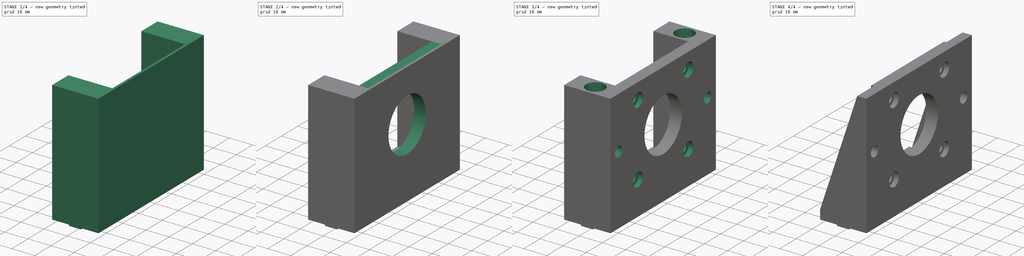
[diagram: build sequence overview — one tinted view per stage of 4, left to right]
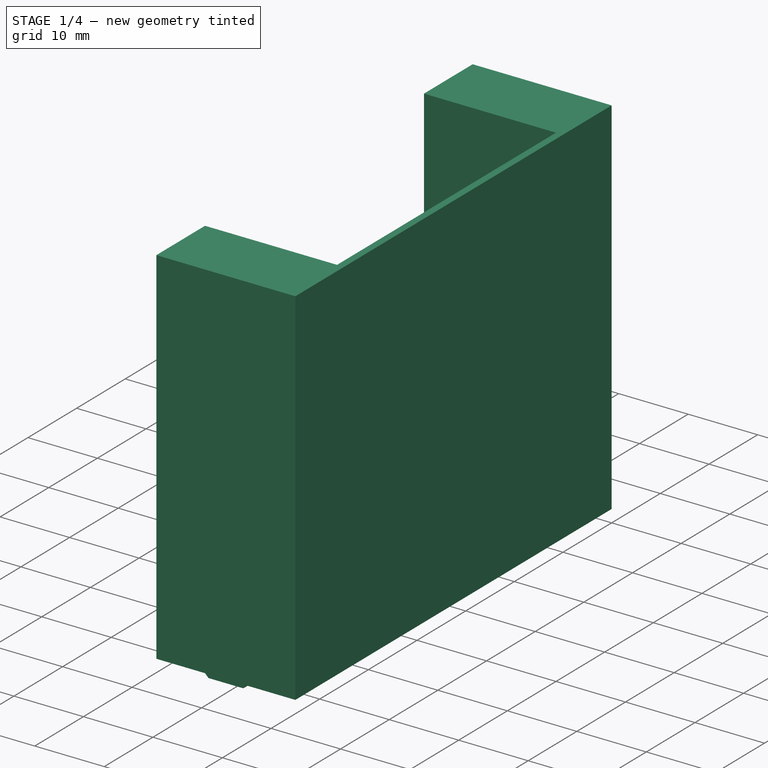
[diagram: stage 1 of 4 — iso view after this stage's code; geometry added in this stage tinted green]
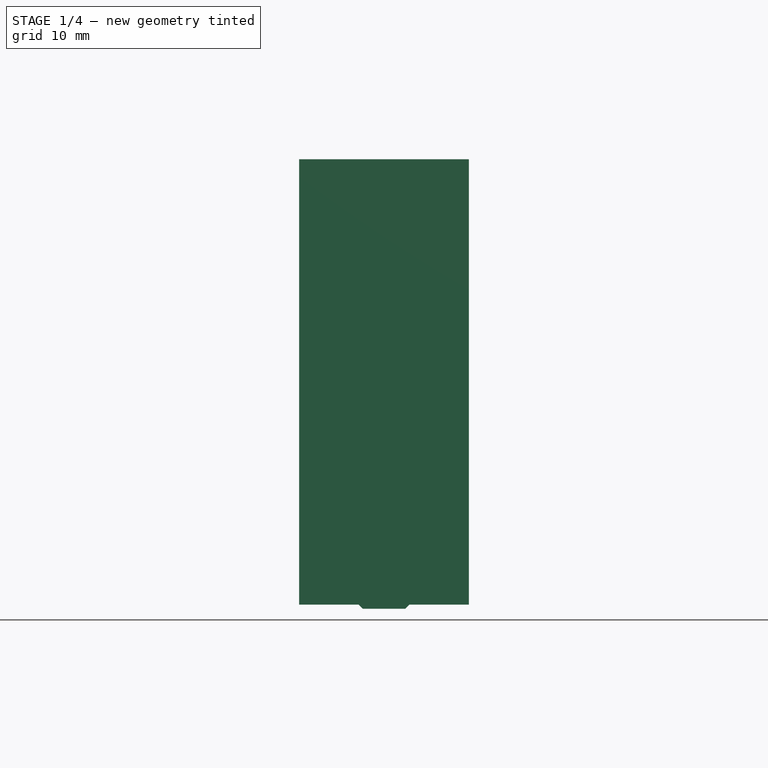
[diagram: stage 1 of 4 — front view after this stage's code; geometry added in this stage tinted green]
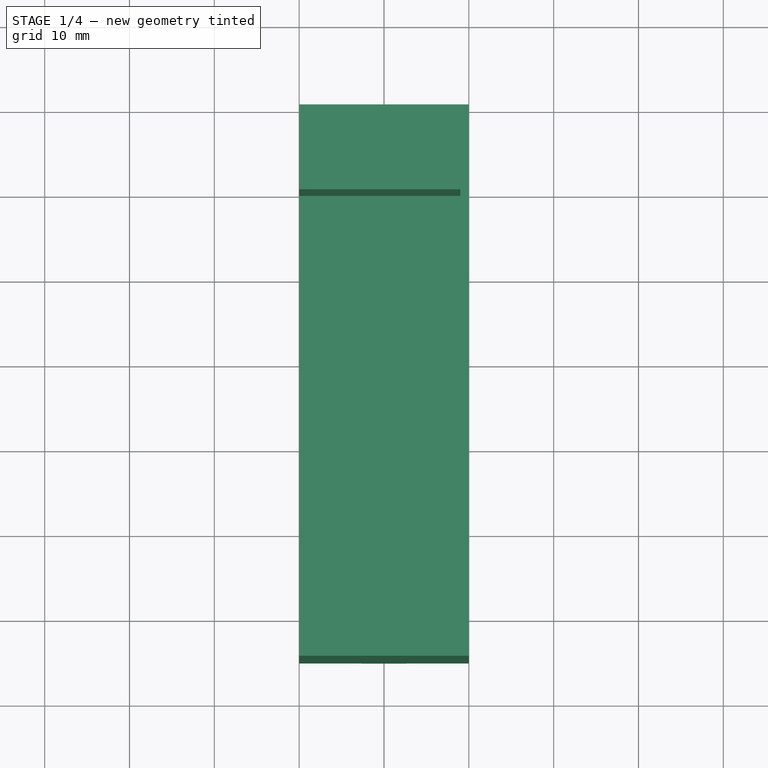
[diagram: stage 1 of 4 — top view after this stage's code; geometry added in this stage tinted green]
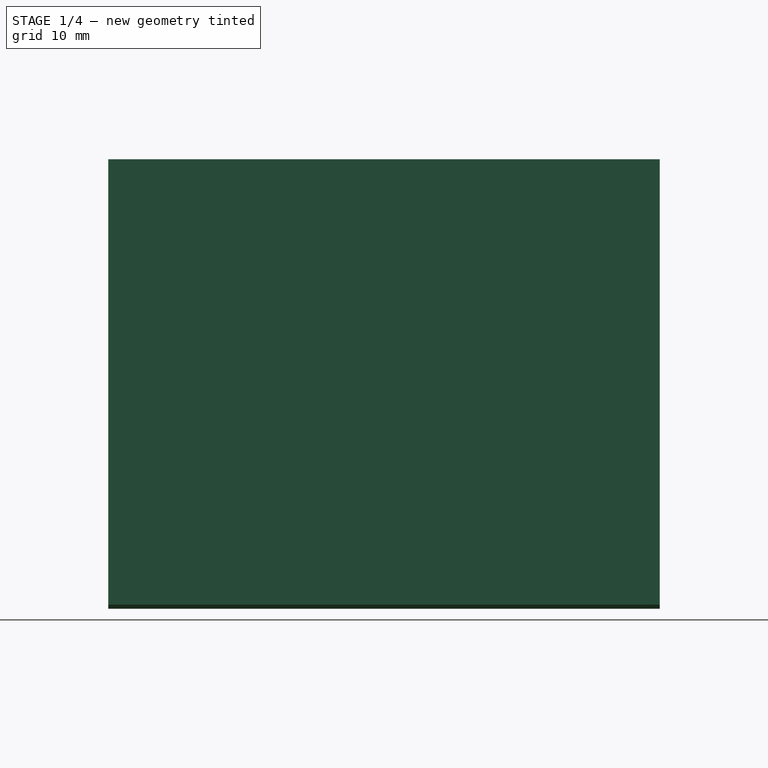
[diagram: stage 1 of 4 — right view after this stage's code; geometry added in this stage tinted green]
FCSTD DOCUMENT  (FreeCAD 0.21R33694 (Git))
Label: 2020_NEMA_motor_mount
License: All rights reserved
LicenseURL: https://en.wikipedia.org/wiki/All_rights_reserved
objects: Sketcher::SketchObject×9, PartDesign::Plane×6, PartDesign::Pocket×4, PartDesign::Hole×3, Spreadsheet::Sheet×2, PartDesign::Pad×2, PartDesign::Body×1
note: 34 computed .brp shape members not serialized (recipe doc carries the construction recipe); baked Part::Feature solids carry a one-line shape summary decoded from their .brp

FEATURE [Spreadsheet::Sheet] Spreadsheet  label="settings"
  cells = A1='Motor settings; B1='mm; C1='Mounting settings; D1='mm; E1='Flange settings; A2='Motor height position; B2(motor_pos_h)=30; C2='mounting hole diameter; D2(mount_hole_dia)=4.5; E2='Flange width; F2(flange_w)=10; A3='Motor depth position; B3(motor_pos_d)=4; C3='mounting hole depth; D3(mount_hole_depth)=4; E3='Flange hole height position; F3(flange_hole_posH)=30; C4='mounting hole counterbore diameter; D4(mount_hole_counterbore_dia)=8; E4='flange hole diameter; F4(flange_hole_dia)=4.5; E5='Flange hole depth; F5(flange_hole_D)=4; E6='Flange hole counterbore diameter; F6(flange_hole_counterbore_dia)=8; A11='NEMA motor settings; C11='Extrusion settings; A12='Outer diameter; B12(NEMA_outer_dia)=45; C12='Size; D12(extrusion_size)=20; A13='Circle diameter; B13(NEMA_circle_dia)=23; C13='slot width; D13(extrusion_slot_w)=6; A14='Mounting hole pitch; B14(NEMA_mount_hole_pitch)=31; C14='slot depth; D14(extrusion_slot_d)=0.5; A15='Mounting hole diameter; B15(NEMA_mount_hole_dia)=3.5; A16='mounting hole depth; B16(NEMA_mount_hole_depth)=3; A17='mounting hole counterbore diameter; B17(NEMA_mount_hole_counterbore_dia)=6
FEATURE [Spreadsheet::Sheet] Spreadsheet001  label="calculations"
  cells = A1='Mount sizings; C1='Motor calculations; E1='Flange sizings; A2='Total mount height; B2(total_mount_H)==<<settings>>.motor_pos_h + <<settings>>.NEMA_outer_dia / 2; C2='Motor center height; D2(motor_center_H)==<<settings>>.motor_pos_h; E2='flange hole left length position; F2(flange_hole_left_pos_L)==<<settings>>.flange_w / 2; A3='Total mount width; B3(total_mount_W)==<<settings>>.flange_w * 2 + <<settings>>.NEMA_outer_dia; C3='Motor center length; D3(motor_center_L)==total_mount_W / 2; E3='flange hole right length position; F3(flange_hole_right_pos_L)==total_mount_W - mount_hole_left_pos_L; A4='Total mount thickness; B4(total_mount_T)==<<settings>>.extrusion_size; C4='Motor pocket depth; D4(motor_pocket_D)==<<settings>>.extrusion_size - motor_minimum_D; E4='flange hole counterbore depth; F4(flange_hole_counterbore_D)==total_mount_T - <<settings>>.mount_hole_depth; A5='Total mount half thickness; B5(total_mount_halfT)==total_mount_T / 2; C5='total motor depth; D5(total_motor_D)==motor_minimum_D + <<settings>>.motor_pos_d; E5='flange hole pitch; F5==flange_hole_right_pos_L - flange_hole_left_pos_L; A6='mount hole left length position; B6(mount_hole_left_pos_L)==<<settings>>.flange_w / 2; C6='motor mounting hole counterbore depth; D6(motor_mount_hole_counterbore_depth)==total_motor_D - <<settings>>.NEMA_mount_hole_depth; A7='mount hole right length position; B7(mount_hole_right_pos_L)==total_mount_W - mount_hole_left_pos_L; A8='mount hole counterbore depth; B8(mount_hole_counterbore_D)==total_mount_H - <<settings>>.mount_hole_depth; A18='Advanced settings; C18='Note; A19='Motor mount minimum depth; B19(motor_minimum_D)=1; C19='preventing a too thin motor wall; A20='generic hole diameter; B20(general_hole_size)=1; C20='the hole bench will properly size this
FEATURE [PartDesign::Plane] DatumPlane  label="plane_right"
  Length = 62.4499
  MapMode = 5
  Placement = pos=(0,0,0) rot=(1,0,0;1.5708rad)
  ResizeMode = 0
  Support = -> [XZ_Plane]
  Width = 89.9499
FEATURE [Sketcher::SketchObject] Sketch
  FullyConstrained = true
  MapMode = 5
  Placement = pos=(0,0,0) rot=(1,0,0;1.5708rad)
  Support = -> [DatumPlane]
  expr: Constraints[18] = <<settings>>.extrusion_slot_d
  expr: Constraints[19] = <<settings>>.extrusion_slot_w
  expr: Constraints[6] = Spreadsheet001.total_mount_H
  expr: Constraints[7] = Spreadsheet001.total_mount_T
  sketch-geometry (9):
    g0: LineSegment StartX=0 StartY=0 StartZ=0 EndX=0 EndY=52.5 EndZ=0
    g1: LineSegment StartX=0 StartY=52.5 StartZ=0 EndX=20 EndY=52.5 EndZ=0
    g2: LineSegment StartX=20 StartY=52.5 StartZ=0 EndX=20 EndY=0 EndZ=0
    g3: GeomPoint X=10 Y=0 Z=0
    g4: LineSegment StartX=0 StartY=0 StartZ=0 EndX=7 EndY=0 EndZ=0
    g5: LineSegment StartX=7 StartY=0 StartZ=0 EndX=7.5 EndY=-0.5 EndZ=0
    g6: LineSegment StartX=7.5 StartY=-0.5 StartZ=0 EndX=12.5 EndY=-0.5 EndZ=0
    g7: LineSegment StartX=12.5 StartY=-0.5 StartZ=0 EndX=13 EndY=0 EndZ=0
    g8: LineSegment StartX=13 StartY=0 StartZ=0 EndX=20 EndY=0 EndZ=0
  constraints (23):
    c: Coincident(g0,g-1)
    c: PointOnObject(g0,g-2)
    c: Coincident(g1,g0)
    c: Horizontal(g1)
    c: Coincident(g2,g1)
    c: Vertical(g2)
    c: DistanceY(g0,g0) = 52.5
    c: DistanceX(g0,g2) = 20
    c: Symmetric(g0,g2,g3)
    c: Coincident(g0,g4)
    c: PointOnObject(g4,g-1)
    c: Coincident(g4,g5)
    c: Coincident(g5,g6)
    c: Horizontal(g6)
    c: Coincident(g6,g7)
    c: PointOnObject(g7,g-1)
    c: Coincident(g7,g8)
    c: Coincident(g8,g2)
    c: DistanceY(g5,g3) = 0.5
    c: DistanceX(g4,g7) = 6
    c: Symmetric(g4,g7,g3)
    c: Angle(g7,g8) = 2.35619
    c: Angle(g4,g5) = 2.35619
FEATURE [PartDesign::Pad] Pad  label="mount_body"
  Direction = (0,-1,-2e-16)
  Length = 65
  Length2 = 10
  Placement = pos=(0,0,0) rot=(1,0,0;1.5708rad)
  Profile = -> Sketch
  ReferenceAxis = -> Sketch [N_Axis]
  Type = 0
  expr: Length = Spreadsheet001.total_mount_W
FEATURE [PartDesign::Plane] DatumPlane001  label="plane_front"
  AttachmentOffset = pos=(0,0,20) rot=(0,0,1;0rad)
  Length = 106.703
  MapMode = 5
  Placement = pos=(20,-4.4e-15,4.4e-15) rot=(0.57735,0.57735,0.57735;2.0944rad)
  ResizeMode = 0
  Support = -> [YZ_Plane]
  Width = 94.2033
  expr: .AttachmentOffset.Base.z = Spreadsheet001.total_mount_T
FEATURE [PartDesign::Plane] DatumPlane002  label="plane_back"
  Length = 106.703
  MapMode = 5
  Placement = pos=(0,0,0) rot=(0.57735,0.57735,0.57735;2.0944rad)
  ResizeMode = 0
  Support = -> [YZ_Plane]
  Width = 94.2033
FEATURE [Sketcher::SketchObject] Sketch001
  FullyConstrained = true
  MapMode = 5
  Placement = pos=(0,0,0) rot=(0.57735,0.57735,0.57735;2.0944rad)
  Support = -> [DatumPlane002]
  expr: Constraints[0] = Spreadsheet001.motor_center_L
  expr: Constraints[12] = <<settings>>.NEMA_outer_dia
  expr: Constraints[1] = Spreadsheet001.motor_center_H
  sketch-geometry (5):
    g0: GeomPoint X=-32.5 Y=30 Z=0
    g1: LineSegment StartX=-55 StartY=52.5 StartZ=0 EndX=-10 EndY=52.5 EndZ=0
    g2: LineSegment StartX=-10 StartY=52.5 StartZ=0 EndX=-10 EndY=7.5 EndZ=0
    g3: LineSegment StartX=-10 StartY=7.5 StartZ=0 EndX=-55 EndY=7.5 EndZ=0
    g4: LineSegment StartX=-55 StartY=7.5 StartZ=0 EndX=-55 EndY=52.5 EndZ=0
  constraints (13):
    c: DistanceX(g0,g-1) = 32.5
    c: DistanceY(g-1,g0) = 30
    c: Coincident(g1,g2)
    c: Coincident(g2,g3)
    c: Coincident(g3,g4)
    c: Coincident(g4,g1)
    c: Horizontal(g1)
    c: Horizontal(g3)
    c: Vertical(g2)
    c: Vertical(g4)
    c: Symmetric(g1,g3,g0)
    c: Equal(g2,g3)
    c: Distance(g2) = 45
FEATURE [PartDesign::Pocket] Pocket  label="motor_pocket"
  BaseFeature = -> Pad
  Direction = (-1,1e-16,-1e-16)
  Length = 19
  Length2 = 5
  Placement = pos=(0,0,0) rot=(1,0,0;1.5708rad)
  Profile = -> Sketch001
  ReferenceAxis = -> Sketch001 [N_Axis]
  Reversed = true
  Type = 0
  expr: Length = Spreadsheet001.motor_pocket_D
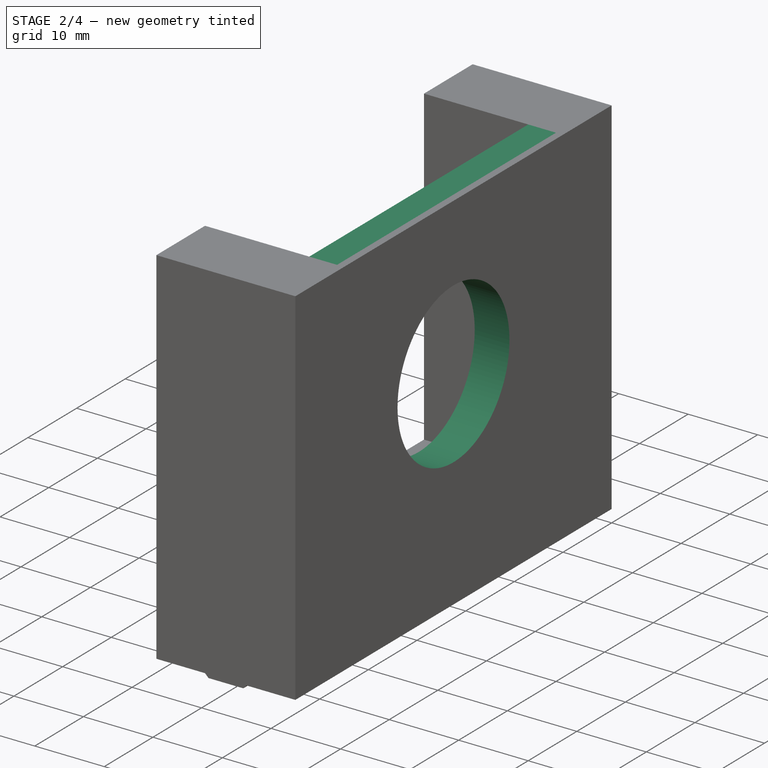
[diagram: stage 2 of 4 — iso view after this stage's code; geometry added in this stage tinted green]
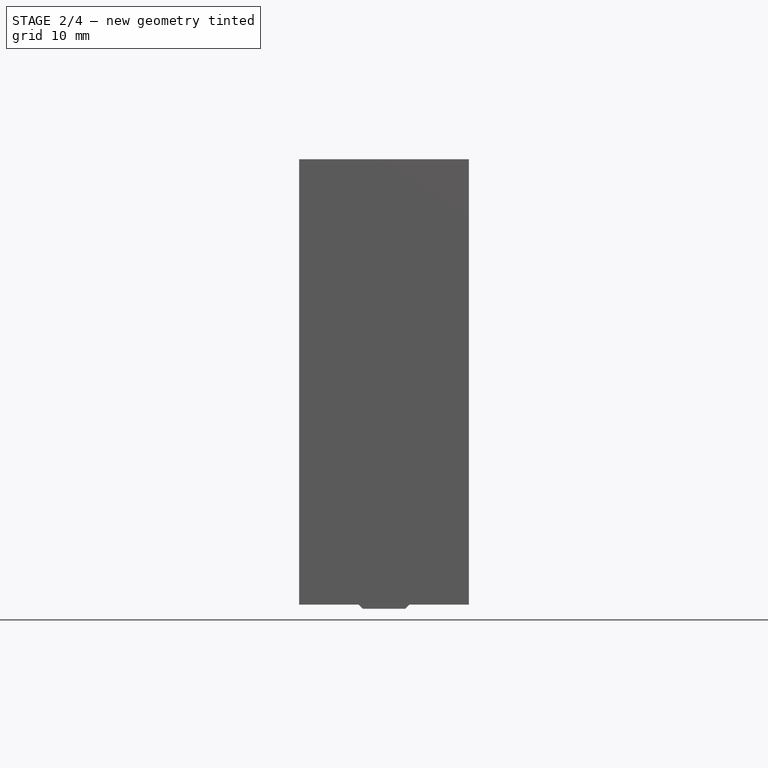
[diagram: stage 2 of 4 — front view after this stage's code; geometry added in this stage tinted green]
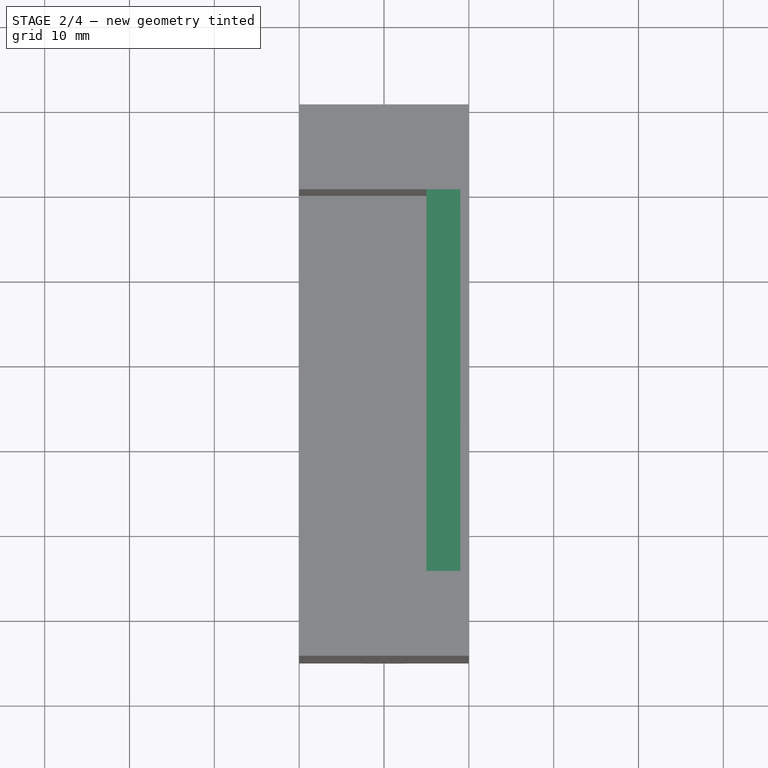
[diagram: stage 2 of 4 — top view after this stage's code; geometry added in this stage tinted green]
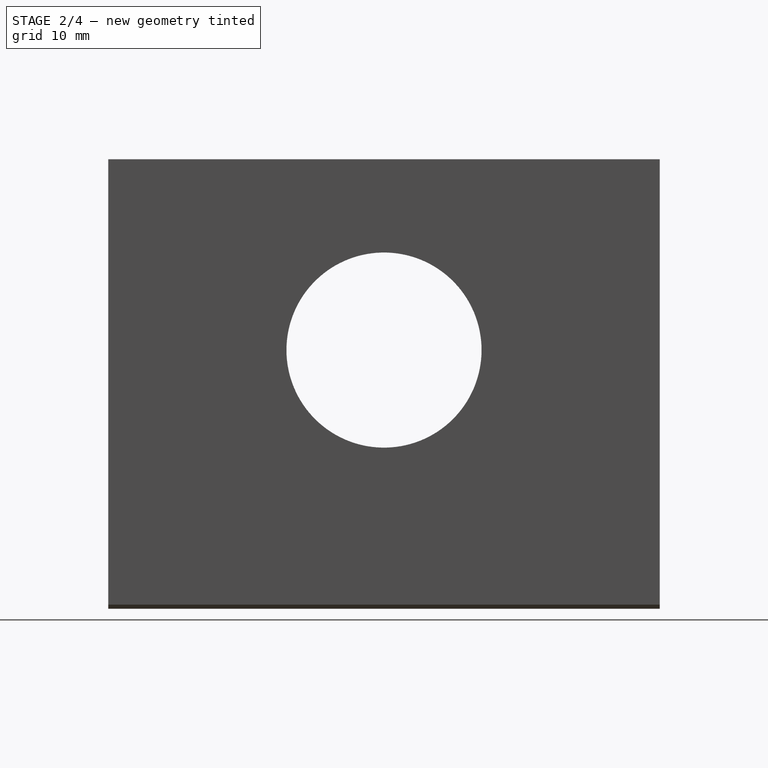
[diagram: stage 2 of 4 — right view after this stage's code; geometry added in this stage tinted green]
FEATURE [PartDesign::Plane] DatumPlane003  label="motor_plane_front"
  AttachmentOffset = pos=(0,0,19) rot=(0,0,1;0rad)
  Length = 106.703
  MapMode = 5
  Placement = pos=(19,-4.2e-15,4.2e-15) rot=(0.57735,0.57735,0.57735;2.0944rad)
  ResizeMode = 0
  Support = -> [YZ_Plane]
  Width = 94.2033
  expr: .AttachmentOffset.Base.z = Spreadsheet001.motor_pocket_D
FEATURE [Sketcher::SketchObject] Sketch002
  FullyConstrained = true
  MapMode = 5
  Placement = pos=(19,-4.2e-15,4.2e-15) rot=(0.57735,0.57735,0.57735;2.0944rad)
  Support = -> [DatumPlane003]
  expr: Constraints[10] = <<settings>>.NEMA_outer_dia
  expr: Constraints[11] = Spreadsheet001.motor_center_H
  expr: Constraints[12] = Spreadsheet001.motor_center_L
  sketch-geometry (5):
    g0: GeomPoint X=-32.5 Y=30 Z=0
    g1: LineSegment StartX=-10 StartY=52.5 StartZ=0 EndX=-55 EndY=52.5 EndZ=0
    g2: LineSegment StartX=-55 StartY=52.5 StartZ=0 EndX=-55 EndY=7.5 EndZ=0
    g3: LineSegment StartX=-55 StartY=7.5 StartZ=0 EndX=-10 EndY=7.5 EndZ=0
    g4: LineSegment StartX=-10 StartY=7.5 StartZ=0 EndX=-10 EndY=52.5 EndZ=0
  constraints (13):
    c: Coincident(g1,g2)
    c: Coincident(g2,g3)
    c: Coincident(g3,g4)
    c: Coincident(g4,g1)
    c: Horizontal(g1)
    c: Horizontal(g3)
    c: Vertical(g2)
    c: Vertical(g4)
    c: Symmetric(g1,g2,g0)
    c: Equal(g4,g3)
    c: Distance(g4) = 45
    c: DistanceY(g-1,g0) = 30
    c: DistanceX(g0,g-1) = 32.5
FEATURE [PartDesign::Pad] Pad001  label="motor_depth_pad"
  BaseFeature = -> Pocket
  Direction = (1,-1e-16,1e-16)
  Length = 4
  Length2 = 10
  Placement = pos=(0,0,0) rot=(1,0,0;1.5708rad)
  Profile = -> Sketch002
  ReferenceAxis = -> Sketch002 [N_Axis]
  Reversed = true
  Type = 0
  expr: Length = <<settings>>.motor_pos_d
FEATURE [Sketcher::SketchObject] Sketch003
  FullyConstrained = true
  MapMode = 5
  Placement = pos=(20,-4.4e-15,4.4e-15) rot=(0.57735,0.57735,0.57735;2.0944rad)
  Support = -> [DatumPlane001]
  expr: Constraints[0] = Spreadsheet001.motor_center_H
  expr: Constraints[1] = Spreadsheet001.motor_center_L
  expr: Constraints[3] = <<settings>>.NEMA_circle_dia
  sketch-geometry (2):
    g0: GeomPoint X=-32.5 Y=30 Z=0
    g1: Circle CenterX=-32.5 CenterY=30 CenterZ=0 NormalX=0 NormalY=0 NormalZ=1 AngleXU=0 Radius=11.5
  constraints (4):
    c: DistanceY(g-1,g0) = 30
    c: DistanceX(g0,g-1) = 32.5
    c: Coincident(g1,g0)
    c: Diameter(g1) = 23
FEATURE [PartDesign::Pocket] Pocket001  label="NEMA_centre_hole"
  BaseFeature = -> Pad001
  Direction = (-1,1e-16,-1e-16)
  Length = 5
  Length2 = 5
  Placement = pos=(0,0,0) rot=(1,0,0;1.5708rad)
  Profile = -> Sketch003
  ReferenceAxis = -> Sketch003 [N_Axis]
  Type = 1
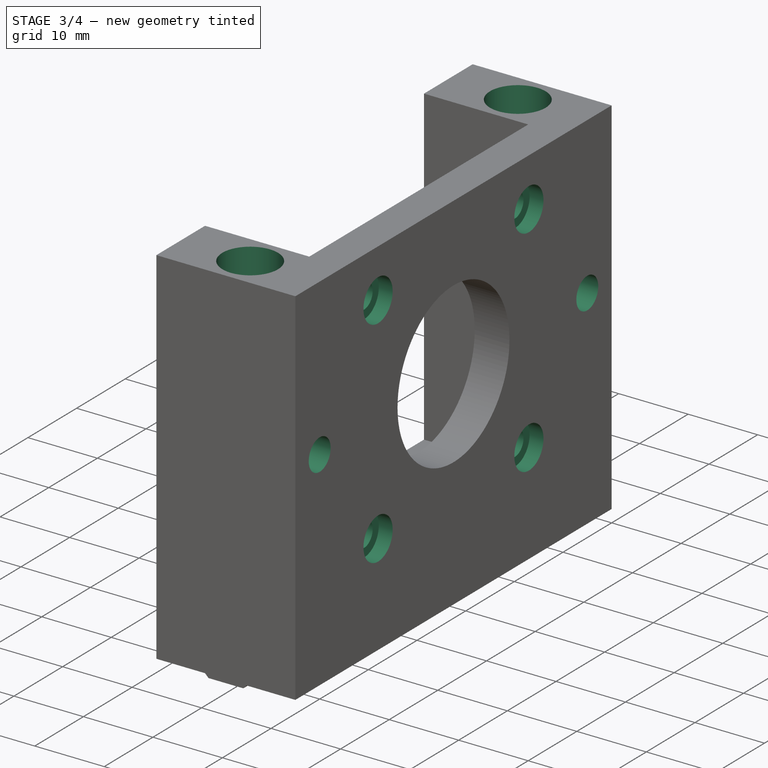
[diagram: stage 3 of 4 — iso view after this stage's code; geometry added in this stage tinted green]
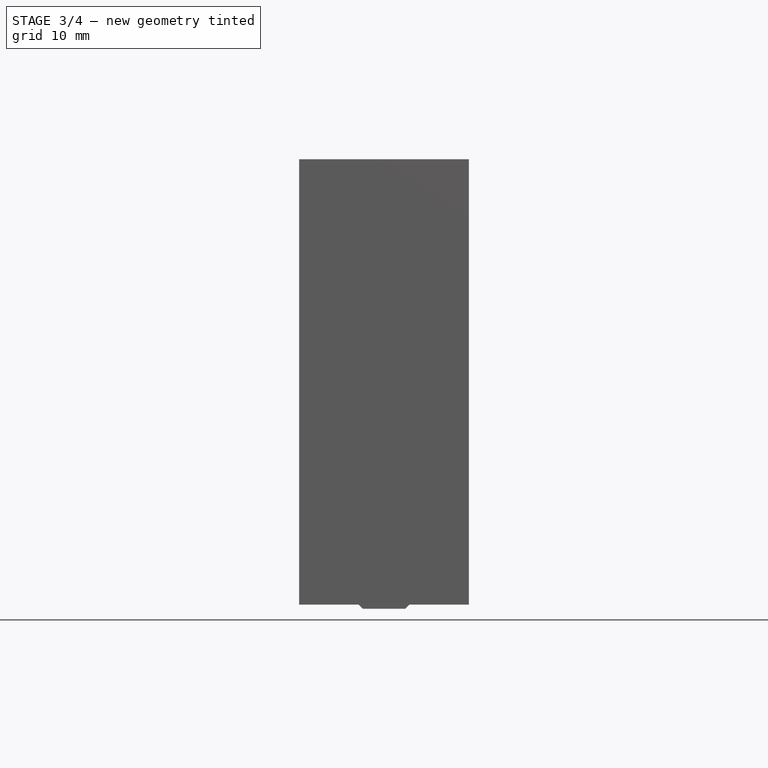
[diagram: stage 3 of 4 — front view after this stage's code; geometry added in this stage tinted green]
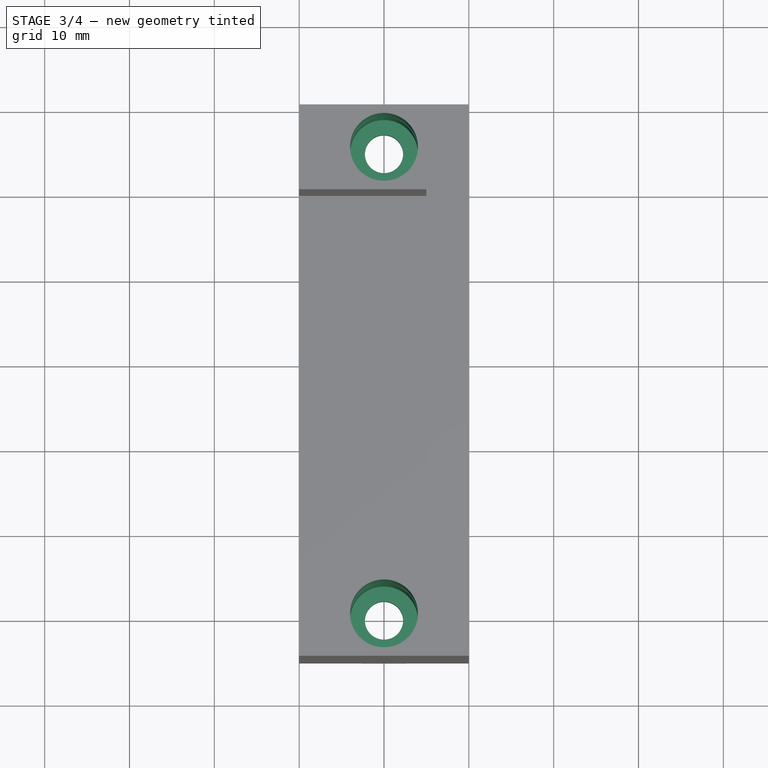
[diagram: stage 3 of 4 — top view after this stage's code; geometry added in this stage tinted green]
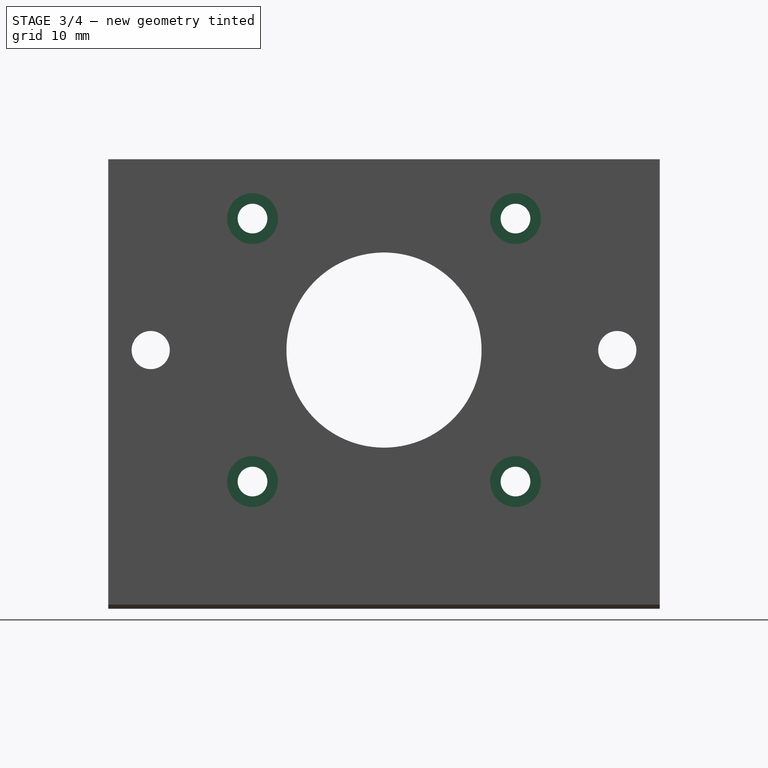
[diagram: stage 3 of 4 — right view after this stage's code; geometry added in this stage tinted green]
FEATURE [Sketcher::SketchObject] Sketch004
  FullyConstrained = true
  MapMode = 5
  Placement = pos=(20,-4.4e-15,4.4e-15) rot=(0.57735,0.57735,0.57735;2.0944rad)
  Support = -> [DatumPlane001]
  expr: Constraints[0] = Spreadsheet001.motor_center_H
  expr: Constraints[12] = Spreadsheet.NEMA_mount_hole_pitch
  expr: Constraints[1] = Spreadsheet001.motor_center_L
  expr: Constraints[20] = <<calculations>>.general_hole_size
  sketch-geometry (9):
    g0: GeomPoint X=-32.5 Y=30 Z=0
    g1: LineSegment StartX=-48 StartY=45.5 StartZ=0 EndX=-17 EndY=45.5 EndZ=0
    g2: LineSegment StartX=-17 StartY=45.5 StartZ=0 EndX=-17 EndY=14.5 EndZ=0
    g3: LineSegment StartX=-17 StartY=14.5 StartZ=0 EndX=-48 EndY=14.5 EndZ=0
    g4: LineSegment StartX=-48 StartY=14.5 StartZ=0 EndX=-48 EndY=45.5 EndZ=0
    g5: Circle CenterX=-48 CenterY=45.5 CenterZ=0 NormalX=0 NormalY=0 NormalZ=1 AngleXU=0 Radius=0.5
    g6: Circle CenterX=-17 CenterY=45.5 CenterZ=0 NormalX=0 NormalY=0 NormalZ=1 AngleXU=0 Radius=0.5
    g7: Circle CenterX=-17 CenterY=14.5 CenterZ=0 NormalX=0 NormalY=0 NormalZ=1 AngleXU=0 Radius=0.5
    g8: Circle CenterX=-48 CenterY=14.5 CenterZ=0 NormalX=0 NormalY=0 NormalZ=1 AngleXU=0 Radius=0.5
  constraints (21):
    c: DistanceY(g-1,g0) = 30
    c: DistanceX(g0,g-1) = 32.5
    c: Coincident(g1,g2)
    c: Coincident(g2,g3)
    c: Coincident(g3,g4)
    c: Coincident(g4,g1)
    c: Horizontal(g1)
    c: Horizontal(g3)
    c: Vertical(g2)
    c: Vertical(g4)
    c: Symmetric(g1,g3,g0)
    c: Equal(g2,g3)
    c: Distance(g2) = 31
    c: Coincident(g5,g1)
    c: Coincident(g6,g1)
    c: Coincident(g7,g2)
    c: Coincident(g8,g3)
    c: Equal(g5,g6)
    c: Equal(g6,g7)
    c: Equal(g7,g8)
    c: Diameter(g5) = 1
FEATURE [PartDesign::Hole] Hole  label="NEMA_mounting_holes"
  BaseFeature = -> Pocket001
  CustomThreadClearance = 0
  Depth = 174.166
  DepthType = 1
  Diameter = 3.5
  DrillForDepth = false
  DrillPoint = 1
  DrillPointAngle = 118
  HoleCutCountersinkAngle = 90
  HoleCutCustomValues = false
  HoleCutDepth = 2
  HoleCutDiameter = 6
  HoleCutType = 1
  ModelThread = false
  Placement = pos=(0,0,0) rot=(1,0,0;1.5708rad)
  Profile = -> Sketch004
  Tapered = false
  TaperedAngle = 90
  ThreadClass = 0
  ThreadDepth = 174.166
  ThreadDepthType = 0
  ThreadDirection = 0
  ThreadFit = 0
  ThreadSize = 0
  ThreadType = 0
  Threaded = false
  UseCustomThreadClearance = false
  expr: Diameter = Spreadsheet.NEMA_mount_hole_dia
  expr: HoleCutDepth = <<calculations>>.motor_mount_hole_counterbore_depth
  expr: HoleCutDiameter = <<settings>>.NEMA_mount_hole_counterbore_dia
FEATURE [PartDesign::Plane] DatumPlane004  label="plane_top"
  AttachmentOffset = pos=(0,0,52.5) rot=(0,0,1;0rad)
  Length = 63.4164
  MapMode = 5
  Placement = pos=(0,0,52.5) rot=(0,0,1;0rad)
  ResizeMode = 0
  Support = -> [XY_Plane]
  Width = 103.416
  expr: .AttachmentOffset.Base.z = Spreadsheet001.total_mount_H
FEATURE [Sketcher::SketchObject] Sketch005
  FullyConstrained = true
  MapMode = 5
  Placement = pos=(0,0,52.5) rot=(0,0,1;0rad)
  Support = -> [DatumPlane004]
  expr: Constraints[1] = Spreadsheet001.total_mount_halfT
  expr: Constraints[2] = Spreadsheet001.mount_hole_left_pos_L
  expr: Constraints[3] = Spreadsheet001.mount_hole_right_pos_L
  expr: Constraints[7] = <<calculations>>.general_hole_size
  sketch-geometry (4):
    g0: GeomPoint X=10 Y=-5 Z=0
    g1: GeomPoint X=10 Y=-60 Z=0
    g2: Circle CenterX=10 CenterY=-5 CenterZ=0 NormalX=0 NormalY=0 NormalZ=1 AngleXU=0 Radius=0.5
    g3: Circle CenterX=10 CenterY=-60 CenterZ=0 NormalX=0 NormalY=0 NormalZ=1 AngleXU=0 Radius=0.5
  constraints (8):
    c: Vertical(g0,g1)
    c: DistanceX(g-1,g0) = 10
    c: DistanceY(g0,g-1) = 5
    c: DistanceY(g1,g-1) = 60
    c: Coincident(g2,g0)
    c: Coincident(g3,g1)
    c: Equal(g3,g2)
    c: Diameter(g2) = 1
FEATURE [PartDesign::Hole] Hole001  label="mounting_holes"
  BaseFeature = -> Hole
  CustomThreadClearance = 0
  Depth = 227.587
  DepthType = 1
  Diameter = 4.5
  DrillForDepth = false
  DrillPoint = 1
  DrillPointAngle = 118
  HoleCutCountersinkAngle = 90
  HoleCutCustomValues = false
  HoleCutDepth = 48.5
  HoleCutDiameter = 8
  HoleCutType = 1
  ModelThread = false
  Placement = pos=(0,0,0) rot=(1,0,0;1.5708rad)
  Profile = -> Sketch005
  Tapered = false
  TaperedAngle = 90
  ThreadClass = 0
  ThreadDepth = 227.587
  ThreadDepthType = 0
  ThreadDirection = 0
  ThreadFit = 0
  ThreadSize = 0
  ThreadType = 0
  Threaded = false
  UseCustomThreadClearance = false
  expr: Diameter = <<settings>>.mount_hole_dia
  expr: HoleCutDepth = <<calculations>>.mount_hole_counterbore_D
  expr: HoleCutDiameter = <<settings>>.mount_hole_counterbore_dia
FEATURE [Sketcher::SketchObject] Sketch006
  FullyConstrained = true
  MapMode = 5
  Placement = pos=(0,0,0) rot=(0.57735,0.57735,0.57735;2.0944rad)
  Support = -> [DatumPlane002]
  expr: Constraints[0] = <<settings>>.flange_hole_posH
  expr: Constraints[2] = <<calculations>>.flange_hole_left_pos_L
  expr: Constraints[3] = <<calculations>>.flange_hole_right_pos_L
  expr: Constraints[7] = <<calculations>>.general_hole_size
  sketch-geometry (4):
    g0: GeomPoint X=-5 Y=30 Z=0
    g1: GeomPoint X=-60 Y=30 Z=0
    g2: Circle CenterX=-5 CenterY=30 CenterZ=0 NormalX=0 NormalY=0 NormalZ=1 AngleXU=0 Radius=0.5
    g3: Circle CenterX=-60 CenterY=30 CenterZ=0 NormalX=0 NormalY=0 NormalZ=1 AngleXU=0 Radius=0.5
  constraints (8):
    c: DistanceY(g-1,g0) = 30
    c: Horizontal(g0,g1)
    c: DistanceX(g0,g-1) = 5
    c: DistanceX(g1,g-1) = 60
    c: Coincident(g2,g0)
    c: Coincident(g3,g1)
    c: Equal(g2,g3)
    c: Diameter(g2) = 1
FEATURE [PartDesign::Hole] Hole002  label="flange_holes"
  BaseFeature = -> Hole001
  CustomThreadClearance = 0
  Depth = 201.982
  DepthType = 1
  Diameter = 4.5
  DrillForDepth = false
  DrillPoint = 1
  DrillPointAngle = 118
  HoleCutCountersinkAngle = 90
  HoleCutCustomValues = false
  HoleCutDepth = 16
  HoleCutDiameter = 8
  HoleCutType = 1
  ModelThread = false
  Placement = pos=(0,0,0) rot=(1,0,0;1.5708rad)
  Profile = -> Sketch006
  Reversed = true
  Tapered = false
  TaperedAngle = 90
  ThreadClass = 0
  ThreadDepth = 201.982
  ThreadDepthType = 0
  ThreadDirection = 0
  ThreadFit = 0
  ThreadSize = 0
  ThreadType = 0
  Threaded = false
  UseCustomThreadClearance = false
  expr: Diameter = <<settings>>.flange_hole_dia
  expr: HoleCutDepth = <<calculations>>.flange_hole_counterbore_D
  expr: HoleCutDiameter = <<settings>>.flange_hole_counterbore_dia
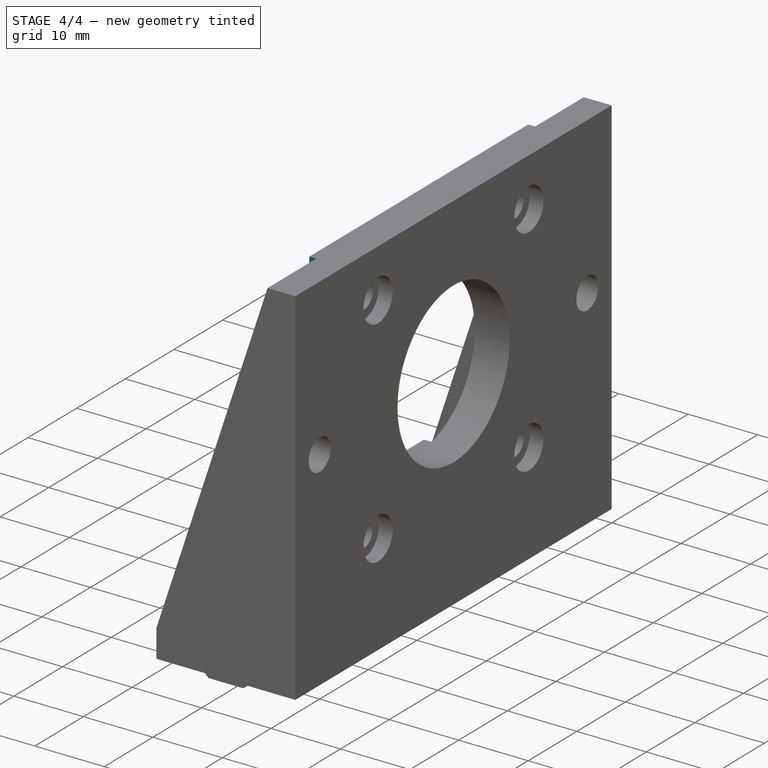
[diagram: stage 4 of 4 — iso view after this stage's code; geometry added in this stage tinted green]
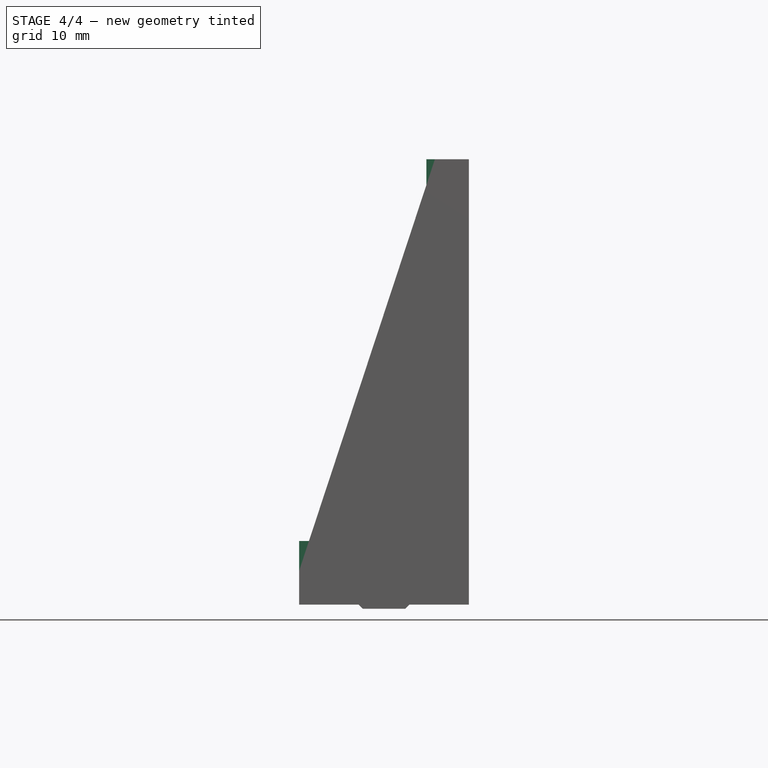
[diagram: stage 4 of 4 — front view after this stage's code; geometry added in this stage tinted green]
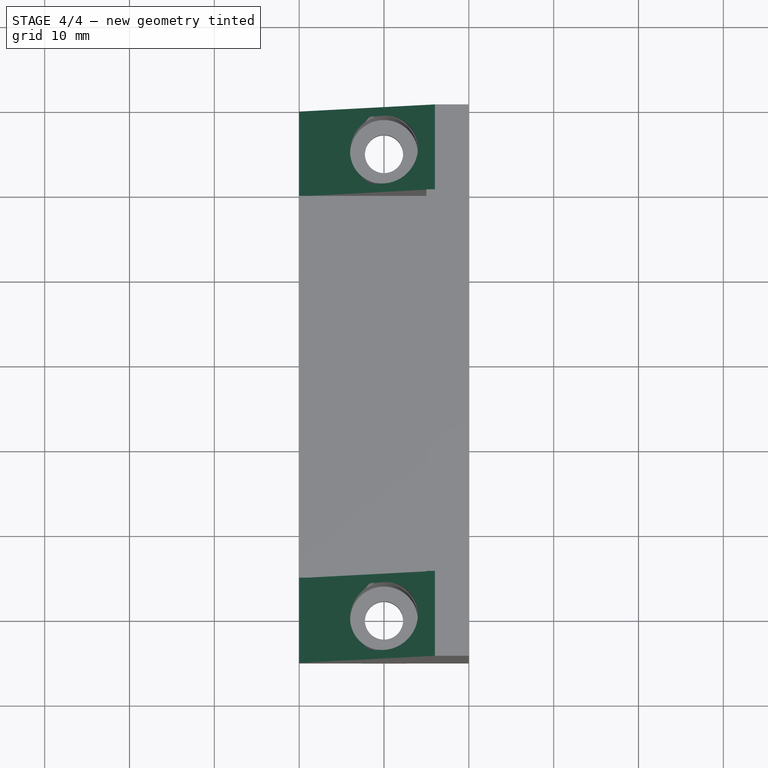
[diagram: stage 4 of 4 — top view after this stage's code; geometry added in this stage tinted green]
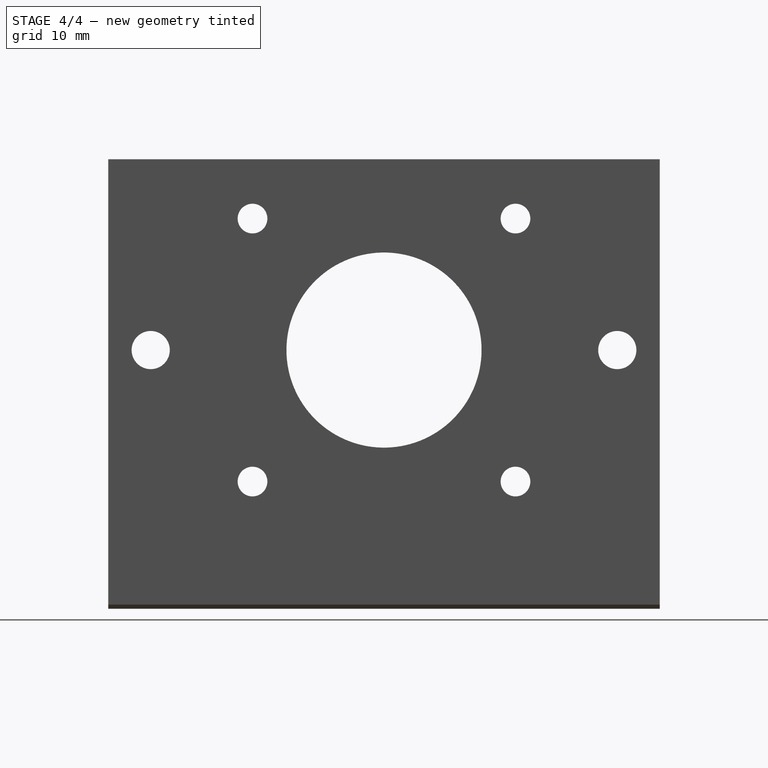
[diagram: stage 4 of 4 — right view after this stage's code; geometry added in this stage tinted green]
FEATURE [Sketcher::SketchObject] Sketch007
  FullyConstrained = true
  MapMode = 5
  Placement = pos=(0,0,0) rot=(1,0,0;1.5708rad)
  Support = -> [DatumPlane]
  expr: Constraints[1] = <<settings>>.mount_hole_depth
  expr: Constraints[3] = <<calculations>>.total_mount_H
  expr: Constraints[8] = <<calculations>>.flange_hole_counterbore_D
  sketch-geometry (4):
    g0: GeomPoint X=0 Y=4 Z=0
    g1: LineSegment StartX=16 StartY=52.5 StartZ=0 EndX=0 EndY=4 EndZ=0
    g2: LineSegment StartX=0 StartY=4 StartZ=0 EndX=0 EndY=52.5 EndZ=0
    g3: LineSegment StartX=0 StartY=52.5 StartZ=0 EndX=16 EndY=52.5 EndZ=0
  constraints (10):
    c: PointOnObject(g0,g-2)
    c: DistanceY(g-1,g0) = 4
    c: PointOnObject(g2,g-2)
    c: DistanceY(g-1,g2) = 52.5
    c: Coincident(g3,g2)
    c: Coincident(g3,g1)
    c: Horizontal(g3)
    c: Coincident(g1,g2)
    c: DistanceX(g3,g3) = 16
    c: Coincident(g1,g0)
FEATURE [PartDesign::Pocket] Pocket002  label="right_flange_taper"
  BaseFeature = -> Hole002
  Direction = (0,1,2e-16)
  Length = 10
  Length2 = 5
  Placement = pos=(0,0,0) rot=(1,0,0;1.5708rad)
  Profile = -> Sketch007
  ReferenceAxis = -> Sketch007 [N_Axis]
  Reversed = true
  Type = 0
  expr: Length = <<settings>>.flange_w
FEATURE [PartDesign::Plane] DatumPlane005  label="plane_left"
  AttachmentOffset = pos=(0,0,65) rot=(0,0,1;0rad)
  Length = 62.4499
  MapMode = 5
  Placement = pos=(0,-65,-1.44e-14) rot=(1,0,0;1.5708rad)
  ResizeMode = 0
  Support = -> [XZ_Plane]
  Width = 89.9499
  expr: .AttachmentOffset.Base.z = <<calculations>>.total_mount_W
FEATURE [Sketcher::SketchObject] Sketch008
  FullyConstrained = true
  MapMode = 5
  Placement = pos=(0,-65,-1.44e-14) rot=(1,0,0;1.5708rad)
  Support = -> [DatumPlane005]
  expr: Constraints[1] = <<settings>>.mount_hole_depth
  expr: Constraints[4] = <<calculations>>.total_mount_H
  expr: Constraints[9] = <<calculations>>.flange_hole_counterbore_D
  sketch-geometry (4):
    g0: GeomPoint X=0 Y=4 Z=0
    g1: LineSegment StartX=0 StartY=4 StartZ=0 EndX=0 EndY=52.5 EndZ=0
    g2: LineSegment StartX=0 StartY=52.5 StartZ=0 EndX=16 EndY=52.5 EndZ=0
    g3: LineSegment StartX=16 StartY=52.5 StartZ=0 EndX=0 EndY=4 EndZ=0
  constraints (10):
    c: PointOnObject(g0,g-2)
    c: DistanceY(g-1,g0) = 4
    c: Coincident(g1,g0)
    c: PointOnObject(g1,g-2)
    c: DistanceY(g-1,g1) = 52.5
    c: Coincident(g2,g1)
    c: Horizontal(g2)
    c: Coincident(g3,g2)
    c: Coincident(g3,g1)
    c: DistanceX(g2,g2) = 16
FEATURE [PartDesign::Pocket] Pocket003  label="left_flange_taper"
  BaseFeature = -> Pocket002
  Direction = (0,1,2e-16)
  Length = 10
  Length2 = 5
  Placement = pos=(0,0,0) rot=(1,0,0;1.5708rad)
  Profile = -> Sketch008
  ReferenceAxis = -> Sketch008 [N_Axis]
  Type = 0
  expr: Length = <<settings>>.flange_w
FEATURE [PartDesign::Body] Body
  Group = -> [DatumPlane,Sketch,Pad,DatumPlane001,DatumPlane002,Sketch001,Pocket,DatumPlane003,Sketch002,Pad001,Sketch003,Pocket001,Sketch004,Hole,DatumPlane004,Sketch005,Hole001,Sketch006,Hole002,Sketch007,Pocket002,DatumPlane005,Sketch008,Pocket003]
  Origin = -> Origin
  Tip = -> Pocket003
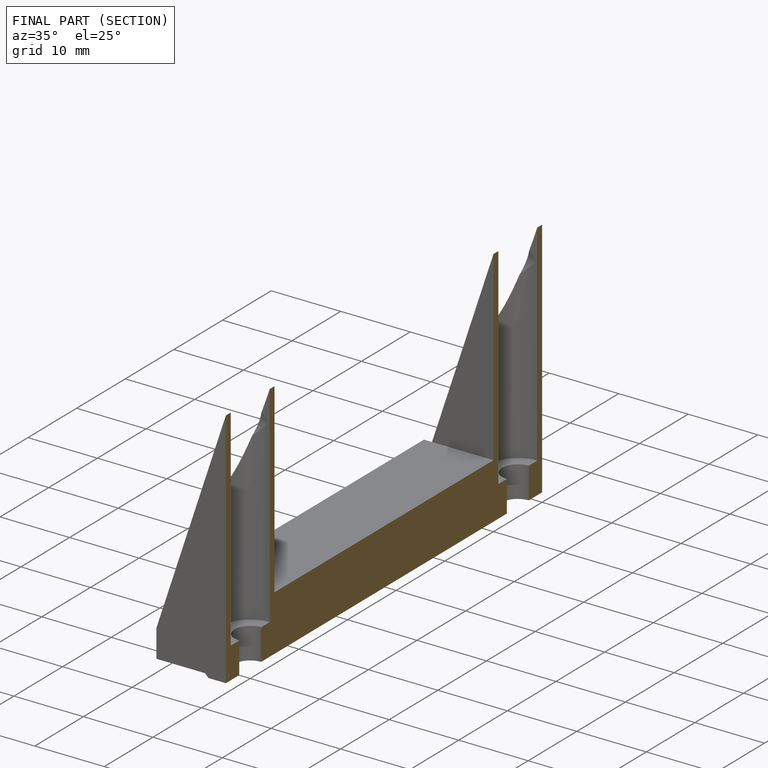
[diagram: finished part — half-section view (interior)]
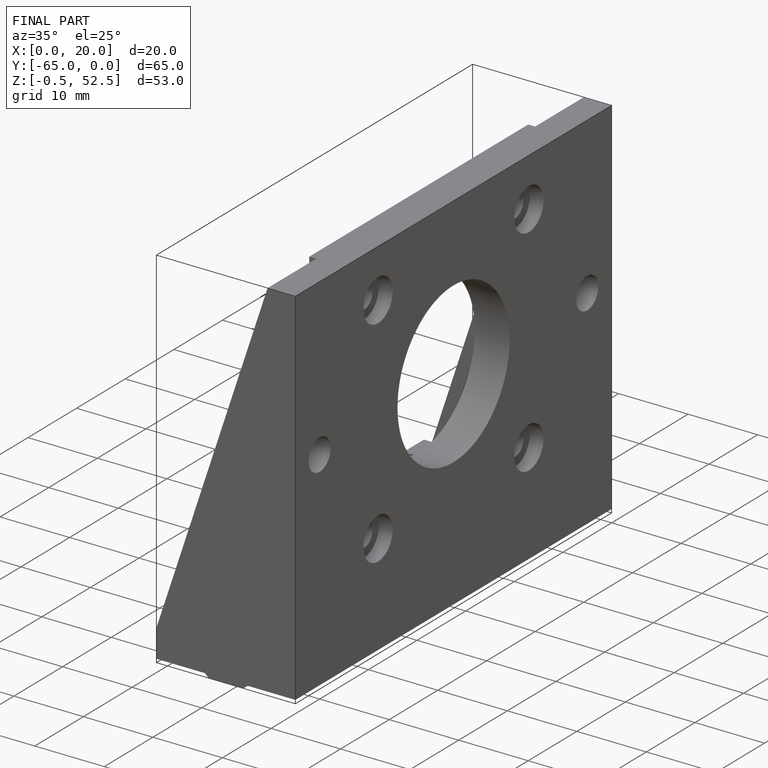
[diagram: finished part — iso view with bounding-box wireframe]
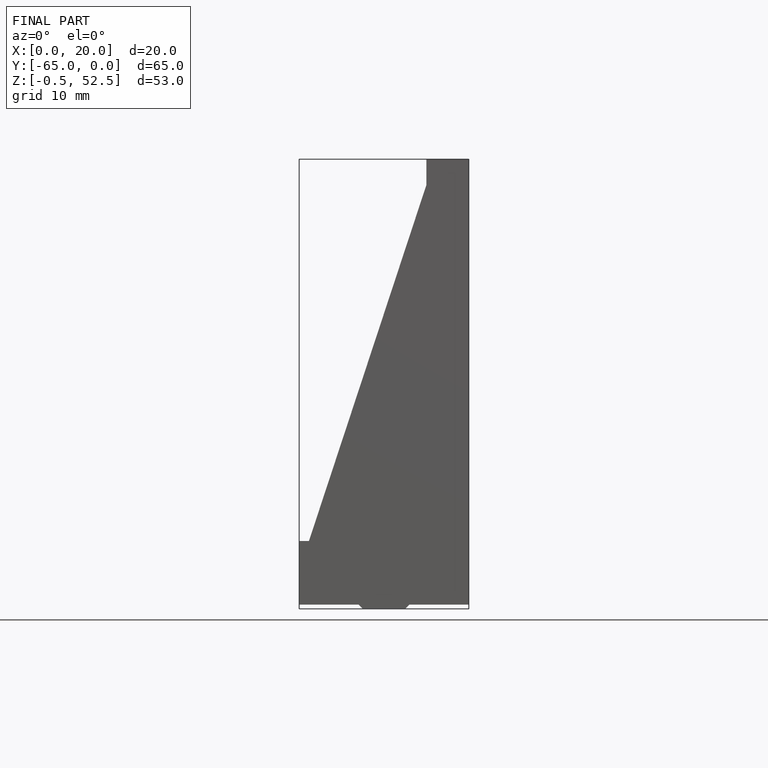
[diagram: finished part — front view with bounding-box wireframe]
